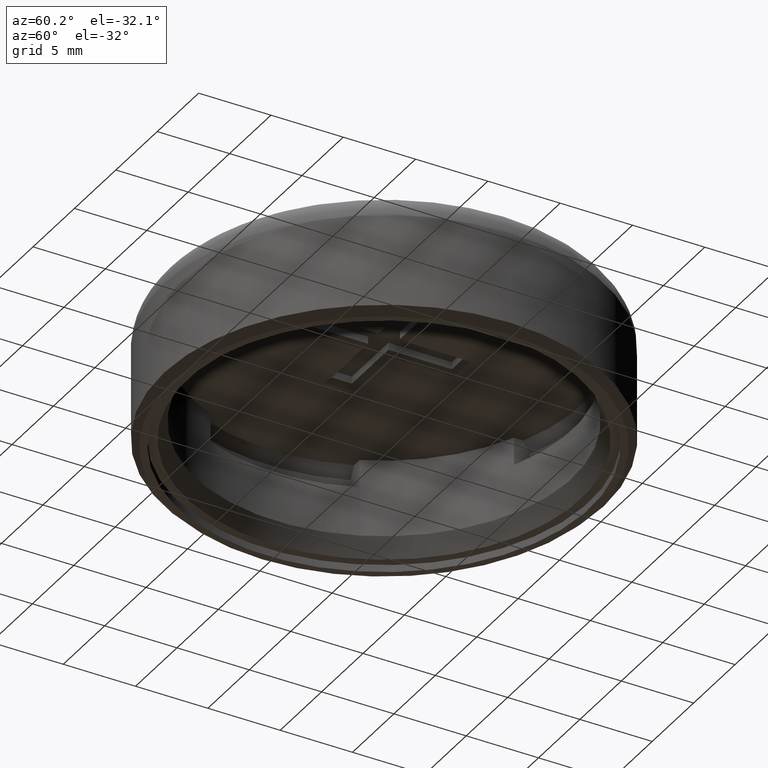
[diagram: clean part render]
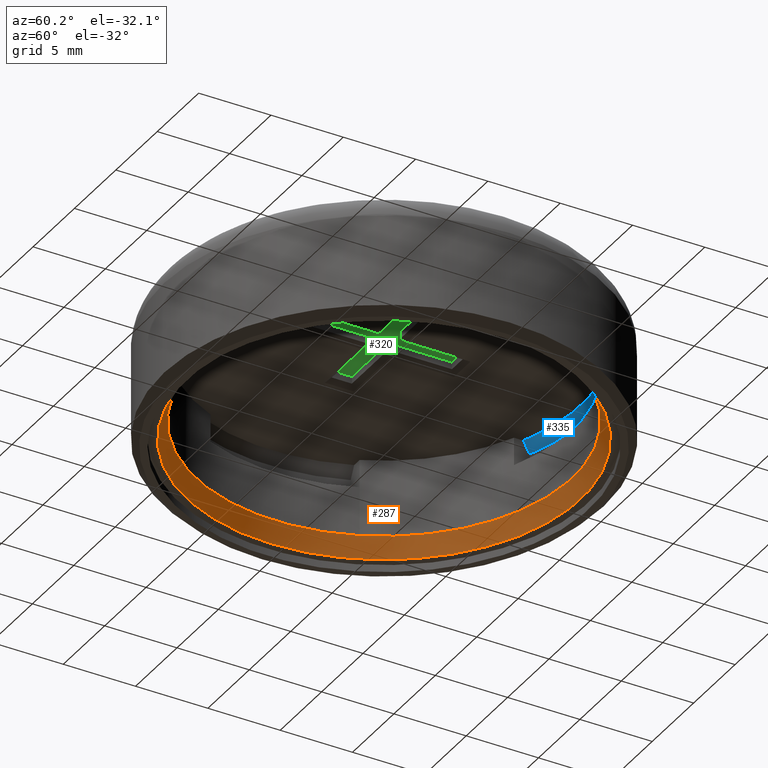
[diagram: same view with three faces highlighted in distinct colors, each labeled with its STEP entity id]
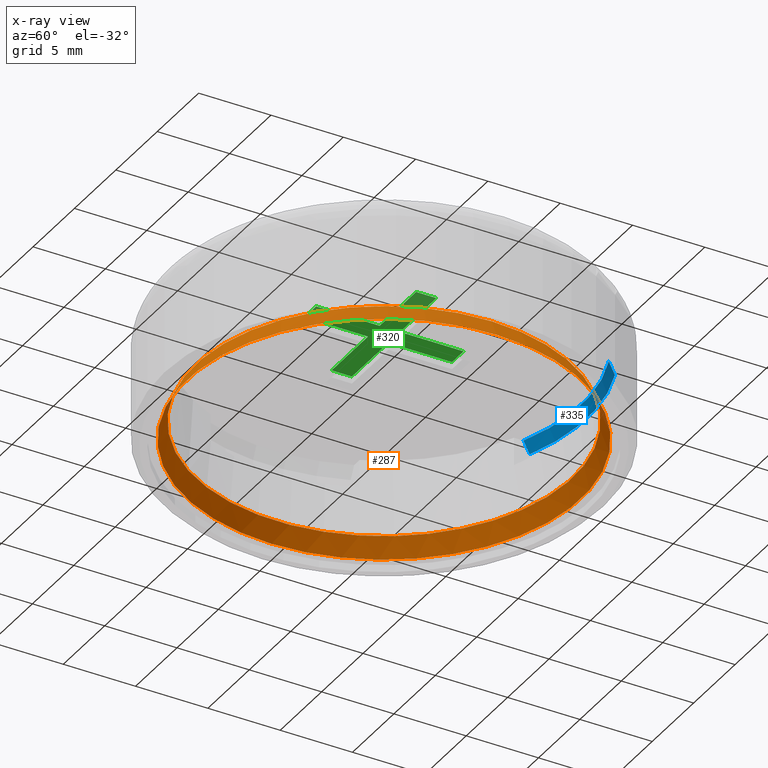
[diagram: x-ray of the same camera — body ghosted, the three highlighted faces saturated]
A machine part, auxiliary view with three faces highlighted in distinct colors.
The next image is the same camera in x-ray (body ghosted, the three faces saturated) — at least one of them is partly hidden behind the body in this view.
Their STEP definitions:

[orange] entity #287 — the highlighted conical surface has half-angle 25 deg.
#85=FACE_BOUND('',#395,.T.);
#86=FACE_BOUND('',#396,.T.);
#287=ADVANCED_FACE('',(#85,#86),#341,.F.);
#341=CONICAL_SURFACE('',#975,13.2999999999997,24.9999999999964);
#395=EDGE_LOOP('',(#485));
#396=EDGE_LOOP('',(#486));
#485=ORIENTED_EDGE('',*,*,#824,.F.);
#486=ORIENTED_EDGE('',*,*,#825,.T.);
#740=VERTEX_POINT('',#1351);
#741=VERTEX_POINT('',#1354);
#824=EDGE_CURVE('',#740,#740,#942,.T.);
#825=EDGE_CURVE('',#741,#741,#943,.T.);
#942=CIRCLE('',#972,12.9999999999996);
#943=CIRCLE('',#974,13.5999999999997);
#972=AXIS2_PLACEMENT_3D('',#1350,#1076,#1077);
#974=AXIS2_PLACEMENT_3D('',#1353,#1080,#1081);
#975=AXIS2_PLACEMENT_3D('',#1355,#1082,#1083);
#1076=DIRECTION('',(0.,0.,-1.));
#1077=DIRECTION('',(1.,0.,0.));
#1080=DIRECTION('',(0.,0.,-1.));
#1081=DIRECTION('',(1.,0.,0.));
#1082=DIRECTION('',(5.015596E-014,-4.669659E-016,-1.));
#1083=DIRECTION('',(-1.,-2.34641663027999E-029,-5.01745200469196E-014));
#1350=CARTESIAN_POINT('',(-1.080187407E-011,1.00568443674968E-013,191.436704152306));
#1351=CARTESIAN_POINT('',(12.9999999999888,1.00568443674968E-013,191.436704152306));
#1353=CARTESIAN_POINT('',(-1.073733827E-011,9.99675966749676E-014,190.149999999999));
#1354=CARTESIAN_POINT('',(13.599999999989,9.99675966749676E-014,190.149999999999));
#1355=CARTESIAN_POINT('',(-1.076960617E-011,1.00268020674968E-013,190.793352076153));

[blue] entity #335 — the highlighted conical surface has half-angle 25 deg.
#335=ADVANCED_FACE('',(#389),#344,.F.);
#344=CONICAL_SURFACE('',#1039,13.8303729595568,24.9999999999986);
#389=FACE_OUTER_BOUND('',#449,.T.);
#449=EDGE_LOOP('',(#707,#708,#709,#710));
#460=(
BOUNDED_CURVE()
B_SPLINE_CURVE(2,(#1541,#1542,#1543),.UNSPECIFIED.,.F.,.F.)
B_SPLINE_CURVE_WITH_KNOTS((3,3),(0.,1.),.UNSPECIFIED.)
CURVE()
GEOMETRIC_REPRESENTATION_ITEM()
RATIONAL_B_SPLINE_CURVE((1.,1.00013002744536,1.00002912207677))
REPRESENTATION_ITEM('')
);
#462=(
BOUNDED_CURVE()
B_SPLINE_CURVE(2,(#1560,#1561,#1562),.UNSPECIFIED.,.F.,.F.)
B_SPLINE_CURVE_WITH_KNOTS((3,3),(0.,1.),.UNSPECIFIED.)
CURVE()
GEOMETRIC_REPRESENTATION_ITEM()
RATIONAL_B_SPLINE_CURVE((1.00002912206861,1.00013002740895,1.))
REPRESENTATION_ITEM('')
);
#707=ORIENTED_EDGE('',*,*,#916,.T.);
#708=ORIENTED_EDGE('',*,*,#922,.T.);
#709=ORIENTED_EDGE('',*,*,#924,.T.);
#710=ORIENTED_EDGE('',*,*,#893,.F.);
#787=VERTEX_POINT('',#1497);
#788=VERTEX_POINT('',#1499);
#797=VERTEX_POINT('',#1540);
#801=VERTEX_POINT('',#1556);
#893=EDGE_CURVE('',#787,#788,#954,.T.);
#916=EDGE_CURVE('',#787,#797,#460,.T.);
#922=EDGE_CURVE('',#797,#801,#957,.T.);
#924=EDGE_CURVE('',#801,#788,#462,.T.);
#954=CIRCLE('',#1011,13.6107459191138);
#957=CIRCLE('',#1026,14.);
#1011=AXIS2_PLACEMENT_3D('',#1498,#1209,#1210);
#1026=AXIS2_PLACEMENT_3D('',#1557,#1263,#1264);
#1039=AXIS2_PLACEMENT_3D('',#1583,#1294,#1295);
#1209=DIRECTION('',(0.,0.,-1.));
#1210=DIRECTION('',(1.,0.,0.));
#1263=DIRECTION('',(0.,0.,-1.));
#1264=DIRECTION('',(1.,0.,0.));
#1294=DIRECTION('',(5.015596E-014,-4.669659E-016,-1.));
#1295=DIRECTION('',(-1.,-2.33612321233429E-029,-5.00612884743582E-014));
#1497=CARTESIAN_POINT('',(-5.15000000001087,12.5988056765186,196.791983416322));
#1498=CARTESIAN_POINT('',(-1.107047326E-011,1.03069176674968E-013,196.791983416322));
#1499=CARTESIAN_POINT('',(5.14999999998944,12.5988056765183,196.791983416322));
#1540=CARTESIAN_POINT('',(-5.15000000001089,13.0183524303194,195.957225346024));
#1541=CARTESIAN_POINT('',(-5.15000000001087,12.5988056765181,196.791983416322));
#1542=CARTESIAN_POINT('',(-5.15000000001088,12.8056216851848,196.381440034775));
#1543=CARTESIAN_POINT('',(-5.15000000001089,13.0183524303194,195.957225346024));
#1556=CARTESIAN_POINT('',(5.14999999998954,13.0183524303192,195.957225346025));
#1557=CARTESIAN_POINT('',(-1.102594892E-011,1.02392448674968E-013,195.957225346025));
#1560=CARTESIAN_POINT('',(5.14999999998954,13.0183524303192,195.957225346025));
#1561=CARTESIAN_POINT('',(5.14999999998949,12.8056216851835,196.381440034778));
#1562=CARTESIAN_POINT('',(5.14999999998944,12.5988056765181,196.791983416322));
#1583=CARTESIAN_POINT('',(-1.104685022E-011,1.02849239674968E-013,196.320991708161));

[green] entity #320 — the highlighted planar face has unit normal (0, 0, -1).
#59=PLANE('',#1020);
#150=LINE('',#1471,#242);
#153=LINE('',#1477,#245);
#155=LINE('',#1481,#247);
#157=LINE('',#1485,#249);
#159=LINE('',#1489,#251);
#161=LINE('',#1493,#253);
#171=LINE('',#1512,#263);
#173=LINE('',#1516,#265);
#175=LINE('',#1520,#267);
#177=LINE('',#1524,#269);
#179=LINE('',#1528,#271);
#180=LINE('',#1530,#272);
#242=VECTOR('',#1183,1.);
#245=VECTOR('',#1188,1.);
#247=VECTOR('',#1192,1.);
#249=VECTOR('',#1196,1.);
#251=VECTOR('',#1200,1.);
#253=VECTOR('',#1204,1.);
#263=VECTOR('',#1222,1.);
#265=VECTOR('',#1226,1.);
#267=VECTOR('',#1230,1.);
#269=VECTOR('',#1234,1.);
#271=VECTOR('',#1238,1.);
#272=VECTOR('',#1241,1.);
#320=ADVANCED_FACE('',(#374),#59,.T.);
#374=FACE_OUTER_BOUND('',#434,.T.);
#434=EDGE_LOOP('',(#631,#632,#633,#634,#635,#636,#637,#638,#639,#640,#641,
#642));
#631=ORIENTED_EDGE('',*,*,#908,.T.);
#632=ORIENTED_EDGE('',*,*,#910,.T.);
#633=ORIENTED_EDGE('',*,*,#911,.T.);
#634=ORIENTED_EDGE('',*,*,#879,.T.);
#635=ORIENTED_EDGE('',*,*,#882,.T.);
#636=ORIENTED_EDGE('',*,*,#884,.T.);
#637=ORIENTED_EDGE('',*,*,#886,.T.);
#638=ORIENTED_EDGE('',*,*,#888,.T.);
#639=ORIENTED_EDGE('',*,*,#890,.T.);
#640=ORIENTED_EDGE('',*,*,#902,.T.);
#641=ORIENTED_EDGE('',*,*,#904,.T.);
#642=ORIENTED_EDGE('',*,*,#906,.T.);
#780=VERTEX_POINT('',#1470);
#781=VERTEX_POINT('',#1472);
#782=VERTEX_POINT('',#1476);
#783=VERTEX_POINT('',#1480);
#784=VERTEX_POINT('',#1484);
#785=VERTEX_POINT('',#1488);
#786=VERTEX_POINT('',#1492);
#791=VERTEX_POINT('',#1511);
#792=VERTEX_POINT('',#1515);
#793=VERTEX_POINT('',#1519);
#794=VERTEX_POINT('',#1523);
#795=VERTEX_POINT('',#1527);
#879=EDGE_CURVE('',#781,#780,#150,.T.);
#882=EDGE_CURVE('',#780,#782,#153,.T.);
#884=EDGE_CURVE('',#782,#783,#155,.T.);
#886=EDGE_CURVE('',#783,#784,#157,.T.);
#888=EDGE_CURVE('',#784,#785,#159,.T.);
#890=EDGE_CURVE('',#785,#786,#161,.T.);
#902=EDGE_CURVE('',#786,#791,#171,.T.);
#904=EDGE_CURVE('',#791,#792,#173,.T.);
#906=EDGE_CURVE('',#792,#793,#175,.T.);
#908=EDGE_CURVE('',#793,#794,#177,.T.);
#910=EDGE_CURVE('',#794,#795,#179,.T.);
#911=EDGE_CURVE('',#795,#781,#180,.T.);
#1020=AXIS2_PLACEMENT_3D('',#1532,#1244,#1245);
#1183=DIRECTION('',(0.,-1.,0.));
#1188=DIRECTION('',(-1.,0.,0.));
#1192=DIRECTION('',(0.,1.,0.));
#1196=DIRECTION('',(-1.,0.,0.));
#1200=DIRECTION('',(0.,1.,0.));
#1204=DIRECTION('',(1.,0.,0.));
#1222=DIRECTION('',(0.,1.,0.));
#1226=DIRECTION('',(1.,0.,0.));
#1230=DIRECTION('',(0.,-1.,0.));
#1234=DIRECTION('',(1.,0.,0.));
#1238=DIRECTION('',(0.,-1.,0.));
#1241=DIRECTION('',(-1.,0.,0.));
#1244=DIRECTION('',(0.,0.,-1.));
#1245=DIRECTION('',(0.,-1.,0.));
#1470=CARTESIAN_POINT('',(0.699999999989142,-5.1000000000002,197.591983416322));
#1471=CARTESIAN_POINT('',(0.699999999988704,-0.699999999999995,197.591983416322));
#1472=CARTESIAN_POINT('',(0.699999999988704,-0.699999999999995,197.591983416322));
#1476=CARTESIAN_POINT('',(-0.700000000010856,-5.10000000000034,197.591983416322));
#1477=CARTESIAN_POINT('',(0.699999999989142,-5.1000000000002,197.591983416322));
#1480=CARTESIAN_POINT('',(-0.700000000011184,-0.700000000000134,197.591983416322));
#1481=CARTESIAN_POINT('',(-0.700000000010856,-5.10000000000034,197.591983416322));
#1484=CARTESIAN_POINT('',(-5.10000000001111,-0.700000000000573,197.591983416322));
#1485=CARTESIAN_POINT('',(-0.700000000011184,-0.700000000000134,197.591983416322));
#1488=CARTESIAN_POINT('',(-5.10000000001122,0.699999999999428,197.591983416322));
#1489=CARTESIAN_POINT('',(-5.10000000001111,-0.700000000000573,197.591983416322));
#1492=CARTESIAN_POINT('',(-0.700000000011289,0.699999999999866,197.591983416322));
#1493=CARTESIAN_POINT('',(-5.10000000001122,0.699999999999428,197.591983416322));
#1511=CARTESIAN_POINT('',(-0.700000000011617,5.09999999999966,197.591983416322));
#1512=CARTESIAN_POINT('',(-0.700000000011289,0.699999999999866,197.591983416322));
#1515=CARTESIAN_POINT('',(0.699999999988127,5.0999999999998,197.591983416322));
#1516=CARTESIAN_POINT('',(-0.700000000011617,5.09999999999966,197.591983416322));
#1519=CARTESIAN_POINT('',(0.699999999988565,0.700000000000005,197.591983416322));
#1520=CARTESIAN_POINT('',(0.699999999988127,5.0999999999998,197.591983416322));
#1523=CARTESIAN_POINT('',(5.09999999998875,0.700000000000442,197.591983416322));
#1524=CARTESIAN_POINT('',(0.699999999988565,0.700000000000005,197.591983416322));
#1527=CARTESIAN_POINT('',(5.09999999998889,-0.699999999999559,197.591983416322));
#1528=CARTESIAN_POINT('',(5.09999999998875,0.700000000000442,197.591983416322));
#1530=CARTESIAN_POINT('',(5.09999999998889,-0.699999999999559,197.591983416322));
#1532=CARTESIAN_POINT('',(-5.10000000001122,0.699999999999428,197.591983416322));